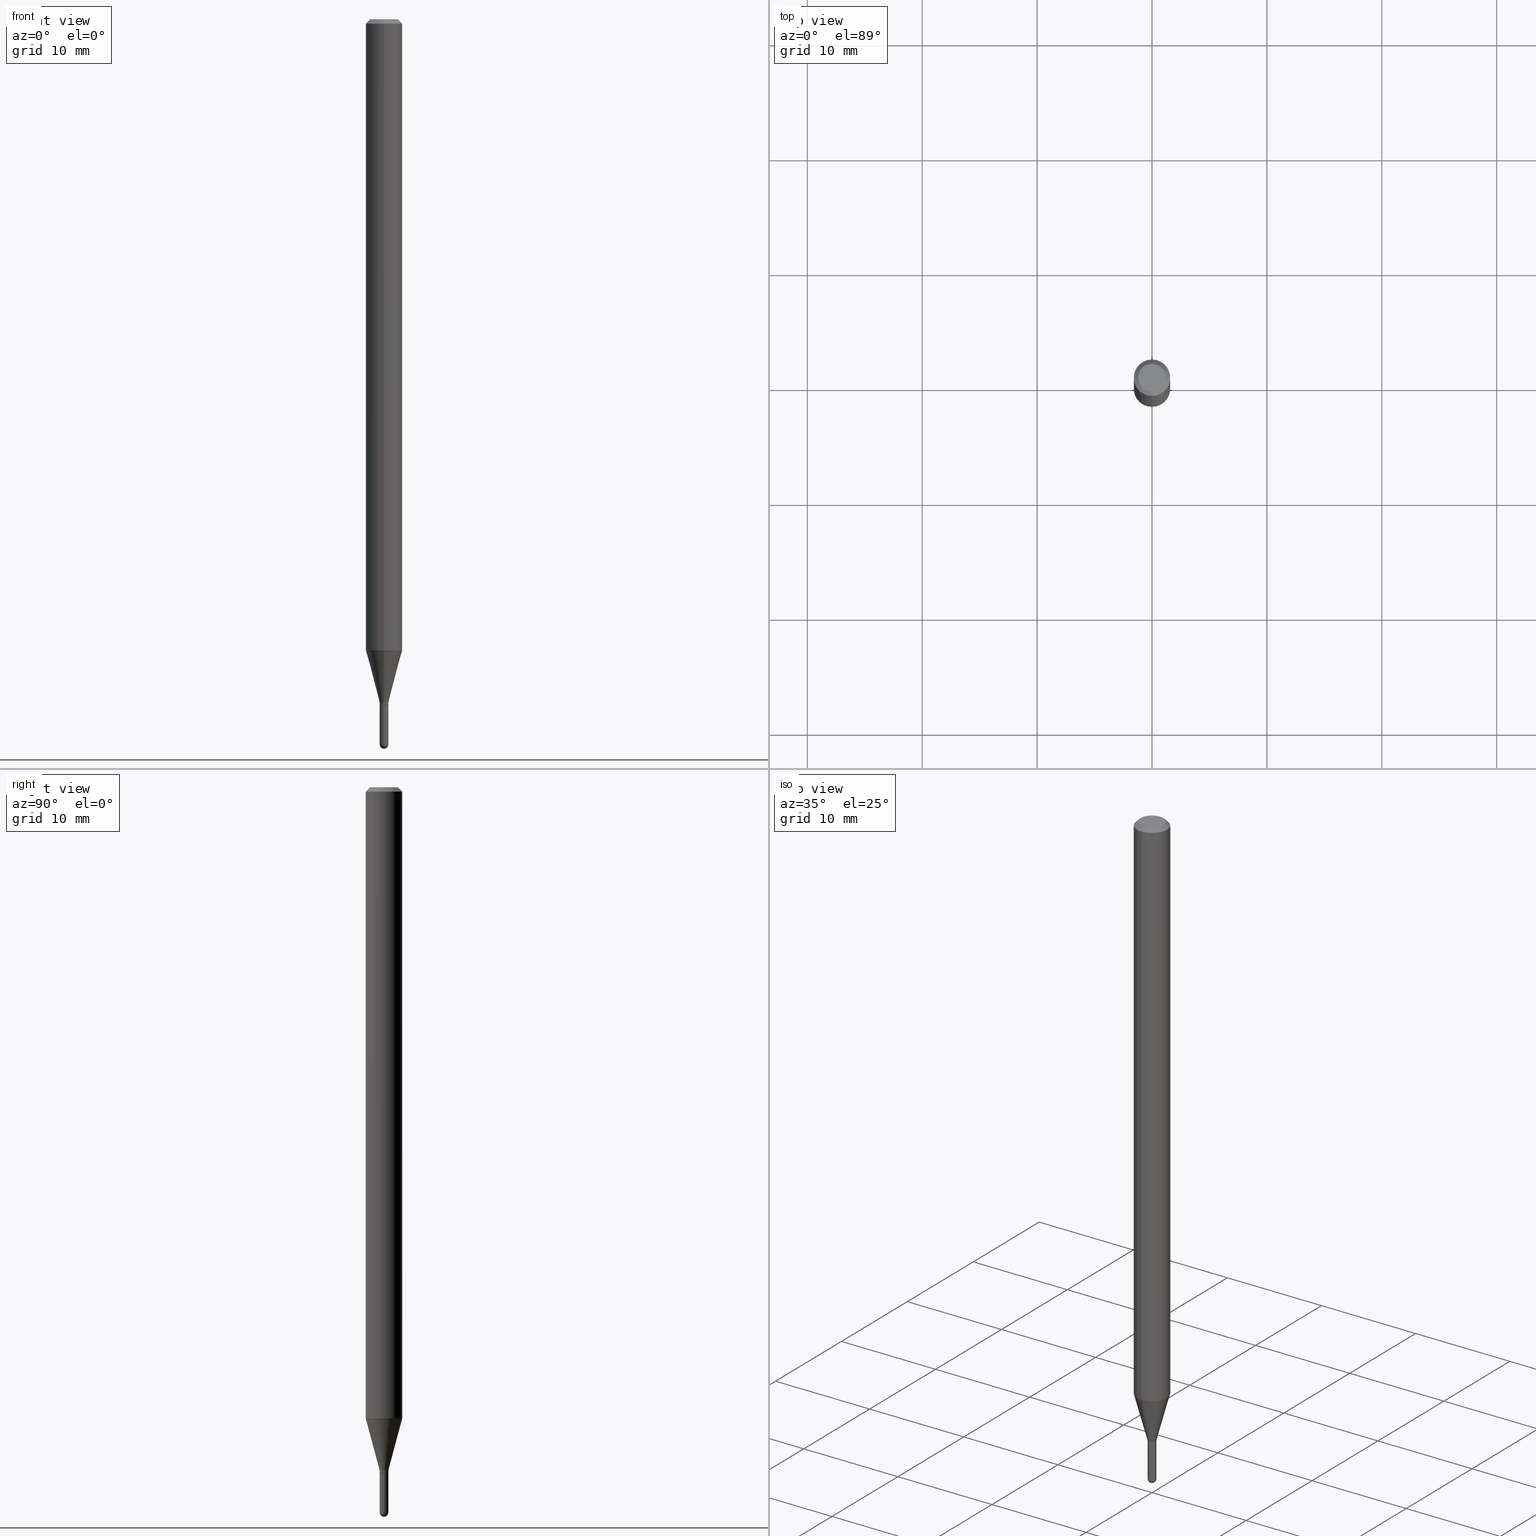
[diagram: canonical four-view strip — front | top / right | iso, engineering-drawing reading convention]
A machine part, canonical four-view strip (front | top / right | iso — engineering-drawing reading convention). The complete STEP part file that produces these views, byte-faithful:
ISO-10303-21;
HEADER;
FILE_DESCRIPTION (( 'STEP AP203' ),
    '1' );
FILE_NAME ('02724.STEP',
    '2024-03-07T21:00:24',
    ( '' ),
    ( '' ),
    'SwSTEP 2.0',
    'SolidWorks 2023',
    '' );
FILE_SCHEMA (( 'CONFIG_CONTROL_DESIGN' ));
ENDSEC;

DATA;
#1 = FACE_OUTER_BOUND ( 'NONE', #77, .T. ) ;
#2 = ORIENTED_EDGE ( 'NONE', *, *, #396, .F. ) ;
#3 = LINE ( 'NONE', #163, #122 ) ;
#4 = DIRECTION ( 'NONE',  ( -1.000000000000000000, 6.982962677686265922E-15, -4.876176775795935793E-29 ) ) ;
#5 = AXIS2_PLACEMENT_3D ( 'NONE', #437, #438, #4 ) ;
#6 = FACE_OUTER_BOUND ( 'NONE', #450, .T. ) ;
#7 = MANIFOLD_SOLID_BREP ( 'Body-Move/Copy2[1]', #432 ) ;
#8 = PRODUCT ( '02724', '02724', '', ( #373 ) ) ;
#9 = DIRECTION ( 'NONE',  ( 1.000000000000000000, -6.982962677686204391E-15, 0.000000000000000000 ) ) ;
#10 = VERTEX_POINT ( 'NONE', #133 ) ;
#11 = DIRECTION ( 'NONE',  ( -6.982962677686265922E-15, -1.000000000000000000, 0.000000000000000000 ) ) ;
#12 = ORIENTED_EDGE ( 'NONE', *, *, #372, .F. ) ;
#13 = AXIS2_PLACEMENT_3D ( 'NONE', #109, #154, #145 ) ;
#14 = EDGE_CURVE ( 'NONE', #471, #72, #281, .T. ) ;
#15 = DIRECTION ( 'NONE',  ( -2.445393450716331535E-29, 3.491589252163441310E-15, 1.000000000000000000 ) ) ;
#16 = ORIENTED_EDGE ( 'NONE', *, *, #489, .F. ) ;
#17 = PERSON_AND_ORGANIZATION ( #185, #346 ) ;
#18 = FACE_OUTER_BOUND ( 'NONE', #279, .T. ) ;
#19 = APPLICATION_CONTEXT ( 'configuration controlled 3d designs of mechanical parts and assemblies' ) ;
#20 =( NAMED_UNIT ( * ) SI_UNIT ( $, .STERADIAN. ) SOLID_ANGLE_UNIT ( ) );
#21 = VERTEX_POINT ( 'NONE', #25 ) ;
#22 = AXIS2_PLACEMENT_3D ( 'NONE', #490, #93, #172 ) ;
#23 = VECTOR ( 'NONE', #383, 39.37007874015748143 ) ;
#24 =( CONVERSION_BASED_UNIT ( 'INCH', #26 ) LENGTH_UNIT ( ) NAMED_UNIT ( #400 ) );
#25 = CARTESIAN_POINT ( 'NONE',  ( 0.01499999999999999771, -8.545400576818596813E-15, -2.484999999999999432 ) ) ;
#26 = LENGTH_MEASURE_WITH_UNIT ( LENGTH_MEASURE( 0.02539999999999999897 ), #169 );
#27 = DIRECTION ( 'NONE',  ( -2.445393450716331535E-29, 3.491589252163441310E-15, 1.000000000000000000 ) ) ;
#28 = CALENDAR_DATE ( 2024, 7, 3 ) ;
#29 = CARTESIAN_POINT ( 'NONE',  ( 4.364351673553919652E-16, 0.06249999999999995143, -0.01500000000000054588 ) ) ;
#30 = AXIS2_PLACEMENT_3D ( 'NONE', #125, #287, #50 ) ;
#31 = APPROVAL_PERSON_ORGANIZATION ( #299, #457, #406 ) ;
#32 = PERSON_AND_ORGANIZATION ( #185, #346 ) ;
#33 = CARTESIAN_POINT ( 'NONE',  ( 6.075707233936295932E-29, -8.678168097223937644E-15, -2.484999999999999876 ) ) ;
#34 = EDGE_LOOP ( 'NONE', ( #155, #195, #474, #233 ) ) ;
#35 = COORDINATED_UNIVERSAL_TIME_OFFSET ( 5, 0, .BEHIND. ) ;
#36 = FACE_OUTER_BOUND ( 'NONE', #313, .T. ) ;
#37 = ORIENTED_EDGE ( 'NONE', *, *, #107, .T. ) ;
#38 = CARTESIAN_POINT ( 'NONE',  ( -1.012529588263933919E-16, -0.01450000000000820771, -2.350000000000000533 ) ) ;
#39 = ADVANCED_FACE ( 'NONE', ( #18 ), #410, .T. ) ;
#40 = EDGE_LOOP ( 'NONE', ( #12, #254, #426, #348, #246 ) ) ;
#41 = COORDINATED_UNIVERSAL_TIME_OFFSET ( 5, 0, .BEHIND. ) ;
#42 = AXIS2_PLACEMENT_3D ( 'NONE', #427, #357, #390 ) ;
#43 = CARTESIAN_POINT ( 'NONE',  ( 6.075707233936295932E-29, -8.678168097223937644E-15, -2.484999999999999876 ) ) ;
#44 = VERTEX_POINT ( 'NONE', #455 ) ;
#45 = CARTESIAN_POINT ( 'NONE',  ( 3.668090176074577860E-31, -5.237383878245276399E-17, -0.01500000000000032904 ) ) ;
#46 = ORIENTED_EDGE ( 'NONE', *, *, #127, .T. ) ;
#47 = ADVANCED_FACE ( 'NONE', ( #103 ), #179, .T. ) ;
#48 = DIRECTION ( 'NONE',  ( -1.807323732225331717E-15, -0.2588190451025184080, 0.9659258262890689783 ) ) ;
#49 = EDGE_CURVE ( 'NONE', #380, #367, #262, .T. ) ;
#50 = DIRECTION ( 'NONE',  ( -6.982962677686265922E-15, -1.000000000000000000, 3.491589252163441310E-15 ) ) ;
#51 = VECTOR ( 'NONE', #48, 39.37007874015748854 ) ;
#52 = CC_DESIGN_DATE_AND_TIME_ASSIGNMENT ( #302, #274, ( #480 ) ) ;
#53 = DIRECTION ( 'NONE',  ( -2.445468806185136877E-29, 3.491481338843145188E-15, 1.000000000000000000 ) ) ;
#54 = DIRECTION ( 'NONE',  ( -6.982962677686265922E-15, -1.000000000000000000, 3.483106191921935554E-15 ) ) ;
#55 = ORIENTED_EDGE ( 'NONE', *, *, #384, .T. ) ;
#56 = COORDINATED_UNIVERSAL_TIME_OFFSET ( 5, 0, .BEHIND. ) ;
#57 = CARTESIAN_POINT ( 'NONE',  ( 0.000000000000000000, 0.000000000000000000, 0.000000000000000000 ) ) ;
#58 = VECTOR ( 'NONE', #444, 39.37007874015748143 ) ;
#59 = DIRECTION ( 'NONE',  ( -6.982962677686265922E-15, -1.000000000000000000, 4.370956789862821150E-15 ) ) ;
#60 = DIRECTION ( 'NONE',  ( -6.982962677686265133E-15, -1.000000000000000000, 3.491589252163441310E-15 ) ) ;
#61 = ADVANCED_FACE ( 'NONE', ( #332 ), #374, .T. ) ;
#62 = DIRECTION ( 'NONE',  ( 2.445393450716331535E-29, -3.491589252163441310E-15, -1.000000000000000000 ) ) ;
#63 = DIRECTION ( 'NONE',  ( -2.445468806185136597E-29, 3.491481338843145583E-15, 1.000000000000000000 ) ) ;
#64 = CARTESIAN_POINT ( 'NONE',  ( 6.113030640745956810E-29, -8.729621832207224636E-15, -2.499999999999999556 ) ) ;
#65 = VECTOR ( 'NONE', #506, 39.37007874015748143 ) ;
#66 = DIRECTION ( 'NONE',  ( -2.445393450716331535E-29, 3.491589252163441310E-15, 1.000000000000000000 ) ) ;
#67 = DIRECTION ( 'NONE',  ( -6.982962677686265922E-15, -1.000000000000000000, 3.483106191921935554E-15 ) ) ;
#68 = DIRECTION ( 'NONE',  ( -2.445393450716331535E-29, 3.491589252163441310E-15, 1.000000000000000000 ) ) ;
#69 = LINE ( 'NONE', #430, #65 ) ;
#70 = AXIS2_PLACEMENT_3D ( 'NONE', #238, #395, #323 ) ;
#71 = FACE_OUTER_BOUND ( 'NONE', #447, .T. ) ;
#72 = VERTEX_POINT ( 'NONE', #175 ) ;
#73 = PLANE ( 'NONE',  #362 ) ;
#74 = VERTEX_POINT ( 'NONE', #493 ) ;
#75 = PERSON_AND_ORGANIZATION ( #185, #346 ) ;
#76 = CARTESIAN_POINT ( 'NONE',  ( 5.746674609183379696E-29, -8.205234742584089169E-15, -2.350000000000000533 ) ) ;
#77 = EDGE_LOOP ( 'NONE', ( #223, #37, #139, #273 ) ) ;
#78 = AXIS2_PLACEMENT_3D ( 'NONE', #196, #319, #86 ) ;
#79 = VECTOR ( 'NONE', #475, 39.37007874015748143 ) ;
#80 = DIRECTION ( 'NONE',  ( -2.445393450716331535E-29, 3.491589252163441310E-15, 1.000000000000000000 ) ) ;
#81 = VERTEX_POINT ( 'NONE', #341 ) ;
#82 = CARTESIAN_POINT ( 'NONE',  ( 6.076989983370063053E-29, -8.676331127025215102E-15, -2.484999999999999432 ) ) ;
#83 = CARTESIAN_POINT ( 'NONE',  ( 6.075707233936295932E-29, -8.678168097223937644E-15, -2.484999999999999876 ) ) ;
#84 = EDGE_CURVE ( 'NONE', #21, #356, #241, .T. ) ;
#85 = AXIS2_PLACEMENT_3D ( 'NONE', #411, #63, #497 ) ;
#86 = DIRECTION ( 'NONE',  ( -6.982962677686265133E-15, -1.000000000000000000, 0.000000000000000000 ) ) ;
#87 = CIRCLE ( 'NONE', #167, 0.01450000000000000074 ) ;
#88 = CIRCLE ( 'NONE', #502, 0.01500000000000019894 ) ;
#89 = CARTESIAN_POINT ( 'NONE',  ( 0.000000000000000000, 0.000000000000000000, 0.000000000000000000 ) ) ;
#90 = VERTEX_POINT ( 'NONE', #64 ) ;
#91 = ORIENTED_EDGE ( 'NONE', *, *, #434, .F. ) ;
#92 = DIRECTION ( 'NONE',  ( -6.982962677686265922E-15, -1.000000000000000000, 0.000000000000000000 ) ) ;
#93 = DIRECTION ( 'NONE',  ( -2.445468806185136597E-29, 3.491481338843145583E-15, 1.000000000000000000 ) ) ;
#94 = AXIS2_PLACEMENT_3D ( 'NONE', #82, #440, #9 ) ;
#95 = CC_DESIGN_APPROVAL ( #457, ( #492 ) ) ;
#96 = CARTESIAN_POINT ( 'NONE',  ( -3.773273898774340269E-16, -0.04749999999999999362, -1.622913323516821957E-16 ) ) ;
#97 = ORIENTED_EDGE ( 'NONE', *, *, #194, .F. ) ;
#98 = CC_DESIGN_PERSON_AND_ORGANIZATION_ASSIGNMENT ( #277, #472, ( #492 ) ) ;
#99 = DIRECTION ( 'NONE',  ( -6.982962677686265133E-15, -1.000000000000000000, 0.000000000000000000 ) ) ;
#100 = LINE ( 'NONE', #260, #104 ) ;
#101 = EDGE_CURVE ( 'NONE', #10, #21, #377, .T. ) ;
#102 = LINE ( 'NONE', #252, #435 ) ;
#103 = FACE_OUTER_BOUND ( 'NONE', #488, .T. ) ;
#104 = VECTOR ( 'NONE', #263, 39.37007874015748143 ) ;
#105 = AXIS2_PLACEMENT_3D ( 'NONE', #173, #487, #171 ) ;
#106 = SHAPE_DEFINITION_REPRESENTATION ( #247, #368 ) ;
#107 = EDGE_CURVE ( 'NONE', #339, #74, #100, .T. ) ;
#108 = ORIENTED_EDGE ( 'NONE', *, *, #462, .F. ) ;
#109 = CARTESIAN_POINT ( 'NONE',  ( 3.316907271900976096E-16, 0.04749999999999999362, -3.299214003924862941E-16 ) ) ;
#110 = PERSON_AND_ORGANIZATION ( #185, #346 ) ;
#111 = EDGE_CURVE ( 'NONE', #74, #81, #441, .T. ) ;
#112 = ORIENTED_EDGE ( 'NONE', *, *, #156, .T. ) ;
#113 = CIRCLE ( 'NONE', #94, 0.01499999999999999771 ) ;
#114 = DIRECTION ( 'NONE',  ( -4.851104656540964275E-15, -0.7071067811865500152, -0.7071067811865450192 ) ) ;
#115 = VERTEX_POINT ( 'NONE', #220 ) ;
#116 = DATE_TIME_ROLE ( 'creation_date' ) ;
#117 = CARTESIAN_POINT ( 'NONE',  ( -1.012529588263933919E-16, -0.01450000000000820771, -2.350000000000000533 ) ) ;
#118 = ORIENTED_EDGE ( 'NONE', *, *, #381, .F. ) ;
#119 = ADVANCED_FACE ( 'NONE', ( #1 ), #473, .T. ) ;
#120 = CARTESIAN_POINT ( 'NONE',  ( 1.048050535246729257E-16, 0.01449999999999179376, -2.350000000000000533 ) ) ;
#121 = VERTEX_POINT ( 'NONE', #38 ) ;
#122 = VECTOR ( 'NONE', #398, 39.37007874015748143 ) ;
#123 = LOCAL_TIME ( 16, 0, 24.00000000000000000, #308 ) ;
#124 = DIRECTION ( 'NONE',  ( -6.982962677686266711E-15, -1.000000000000000000, 3.491589252163441704E-15 ) ) ;
#125 = CARTESIAN_POINT ( 'NONE',  ( 0.000000000000000000, 0.000000000000000000, 0.000000000000000000 ) ) ;
#126 = DIRECTION ( 'NONE',  ( 1.000000000000000000, -6.982962677686204391E-15, 0.000000000000000000 ) ) ;
#127 = EDGE_CURVE ( 'NONE', #115, #407, #165, .T. ) ;
#128 = CARTESIAN_POINT ( 'NONE',  ( 4.440892098501152726E-16, 0.06249999999999242967, -2.162727586640479593 ) ) ;
#129 = CIRCLE ( 'NONE', #415, 0.06250000000000000000 ) ;
#130 = ORIENTED_EDGE ( 'NONE', *, *, #127, .F. ) ;
#131 = EDGE_LOOP ( 'NONE', ( #177, #146, #91, #445 ) ) ;
#132 = LINE ( 'NONE', #446, #58 ) ;
#133 = CARTESIAN_POINT ( 'NONE',  ( -1.065814103639537147E-16, -0.01500000000000860367, -2.484999999999999432 ) ) ;
#134 = DIRECTION ( 'NONE',  ( -2.445393450716331535E-29, 3.491589252163441310E-15, 1.000000000000000000 ) ) ;
#135 = ORIENTED_EDGE ( 'NONE', *, *, #503, .F. ) ;
#136 = AXIS2_PLACEMENT_3D ( 'NONE', #338, #62, #452 ) ;
#137 = DATE_AND_TIME ( #449, #209 ) ;
#138 = DIRECTION ( 'NONE',  ( 1.000000000000000000, -6.982962677686204391E-15, 0.000000000000000000 ) ) ;
#139 = ORIENTED_EDGE ( 'NONE', *, *, #258, .F. ) ;
#140 = CALENDAR_DATE ( 2024, 7, 3 ) ;
#141 = VERTEX_POINT ( 'NONE', #464 ) ;
#142 = AXIS2_PLACEMENT_3D ( 'NONE', #331, #134, #208 ) ;
#143 = CC_DESIGN_SECURITY_CLASSIFICATION ( #480, ( #265 ) ) ;
#144 = LINE ( 'NONE', #269, #486 ) ;
#145 = DIRECTION ( 'NONE',  ( 6.982962677686265922E-15, 1.000000000000000000, -3.491589252163441310E-15 ) ) ;
#146 = ORIENTED_EDGE ( 'NONE', *, *, #222, .T. ) ;
#147 = CARTESIAN_POINT ( 'NONE',  ( 0.000000000000000000, 0.000000000000000000, 0.000000000000000000 ) ) ;
#148 = ORIENTED_EDGE ( 'NONE', *, *, #483, .T. ) ;
#149 = VECTOR ( 'NONE', #53, 39.37007874015748143 ) ;
#150 = APPROVAL_PERSON_ORGANIZATION ( #32, #239, #459 ) ;
#151 = DIRECTION ( 'NONE',  ( -6.982962677686265133E-15, -1.000000000000000000, 0.000000000000000000 ) ) ;
#152 = ORIENTED_EDGE ( 'NONE', *, *, #84, .T. ) ;
#153 = EDGE_CURVE ( 'NONE', #405, #81, #144, .T. ) ;
#154 = DIRECTION ( 'NONE',  ( 2.445393450716331255E-29, -3.491589252163441310E-15, -1.000000000000000000 ) ) ;
#155 = ORIENTED_EDGE ( 'NONE', *, *, #200, .F. ) ;
#156 = EDGE_CURVE ( 'NONE', #339, #405, #199, .T. ) ;
#157 = DIRECTION ( 'NONE',  ( -2.445393450716331535E-29, 3.491589252163441310E-15, 1.000000000000000000 ) ) ;
#158 = CC_DESIGN_PERSON_AND_ORGANIZATION_ASSIGNMENT ( #17, #248, ( #8 ) ) ;
#159 =( GEOMETRIC_REPRESENTATION_CONTEXT ( 3 ) GLOBAL_UNCERTAINTY_ASSIGNED_CONTEXT ( ( #412 ) ) GLOBAL_UNIT_ASSIGNED_CONTEXT ( ( #24, #219, #20 ) ) REPRESENTATION_CONTEXT ( 'NONE', 'WORKASPACE' ) );
#160 = FACE_OUTER_BOUND ( 'NONE', #394, .T. ) ;
#161 = CARTESIAN_POINT ( 'NONE',  ( 8.024358620078516947E-45, -1.145736458285023470E-30, -3.281418218294456599E-16 ) ) ;
#162 = ADVANCED_FACE ( 'NONE', ( #224 ), #275, .T. ) ;
#163 = CARTESIAN_POINT ( 'NONE',  ( 0.01499999999999999771, -1.047444401652939859E-16, 7.314265163693902638E-31 ) ) ;
#164 = VERTEX_POINT ( 'NONE', #461 ) ;
#165 = CIRCLE ( 'NONE', #232, 0.01500000000000019894 ) ;
#166 = CARTESIAN_POINT ( 'NONE',  ( 5.746674609183379696E-29, -8.205234742584089169E-15, -2.350000000000000533 ) ) ;
#167 = AXIS2_PLACEMENT_3D ( 'NONE', #214, #66, #92 ) ;
#168 = ORIENTED_EDGE ( 'NONE', *, *, #326, .T. ) ;
#169 =( LENGTH_UNIT ( ) NAMED_UNIT ( * ) SI_UNIT ( $, .METRE. ) );
#170 = DIRECTION ( 'NONE',  ( 1.000000000000000000, -6.982962677686268288E-15, 0.000000000000000000 ) ) ;
#171 = DIRECTION ( 'NONE',  ( 6.982962677686265922E-15, 1.000000000000000000, -3.483106191921935554E-15 ) ) ;
#172 = DIRECTION ( 'NONE',  ( 1.000000000000000000, -6.982962677686266711E-15, 4.876176775795935793E-29 ) ) ;
#173 = CARTESIAN_POINT ( 'NONE',  ( 3.668090176074577860E-31, -5.237383878245276399E-17, -0.01500000000000032904 ) ) ;
#174 = AXIS2_PLACEMENT_3D ( 'NONE', #334, #371, #298 ) ;
#175 = CARTESIAN_POINT ( 'NONE',  ( 3.840629472727447874E-16, 0.04749999999999999362, -4.939923113072091241E-16 ) ) ;
#176 = ADVANCED_FACE ( 'NONE', ( #36 ), #73, .F. ) ;
#177 = ORIENTED_EDGE ( 'NONE', *, *, #417, .F. ) ;
#178 = ADVANCED_FACE ( 'NONE', ( #228 ), #207, .T. ) ;
#179 = CYLINDRICAL_SURFACE ( 'NONE', #174, 0.01499999999999999771 ) ;
#180 = COORDINATED_UNIVERSAL_TIME_OFFSET ( 5, 0, .BEHIND. ) ;
#181 = DIRECTION ( 'NONE',  ( -2.445393450716331535E-29, 3.491589252163441310E-15, 1.000000000000000000 ) ) ;
#182 = AXIS2_PLACEMENT_3D ( 'NONE', #189, #181, #305 ) ;
#183 = AXIS2_PLACEMENT_3D ( 'NONE', #375, #336, #333 ) ;
#184 = DIRECTION ( 'NONE',  ( -1.000000000000000000, 7.105427357601001070E-15, -4.926315508542082329E-29 ) ) ;
#185 = PERSON ( 'UNSPECIFIED', 'UNSPECIFIED', 'UNSPECIFIED', ('UNSPECIFIED'), ('UNSPECIFIED'), ('UNSPECIFIED') ) ;
#186 = DIRECTION ( 'NONE',  ( 6.982962677686265922E-15, 1.000000000000000000, 0.000000000000000000 ) ) ;
#187 = ORIENTED_EDGE ( 'NONE', *, *, #255, .T. ) ;
#188 = DATE_AND_TIME ( #28, #123 ) ;
#189 = CARTESIAN_POINT ( 'NONE',  ( 5.288719876054166459E-29, -7.551356396871277029E-15, -2.162727586640479593 ) ) ;
#190 = CC_DESIGN_PERSON_AND_ORGANIZATION_ASSIGNMENT ( #340, #499, ( #265 ) ) ;
#191 = ORIENTED_EDGE ( 'NONE', *, *, #381, .T. ) ;
#192 = CONICAL_SURFACE ( 'NONE', #78, 0.01500000000000019894, 0.2617993877991505181 ) ;
#193 = DIRECTION ( 'NONE',  ( -2.445393450716331535E-29, 3.491589252163441310E-15, 1.000000000000000000 ) ) ;
#194 = EDGE_CURVE ( 'NONE', #121, #164, #388, .T. ) ;
#195 = ORIENTED_EDGE ( 'NONE', *, *, #250, .T. ) ;
#196 = CARTESIAN_POINT ( 'NONE',  ( 5.722220674676214346E-29, -8.170318850062451766E-15, -2.339999999999999414 ) ) ;
#197 = EDGE_CURVE ( 'NONE', #164, #115, #309, .T. ) ;
#198 = CYLINDRICAL_SURFACE ( 'NONE', #30, 0.06250000000000000000 ) ;
#199 = CIRCLE ( 'NONE', #182, 0.06250000000000000000 ) ;
#200 = EDGE_CURVE ( 'NONE', #330, #141, #69, .T. ) ;
#201 = LINE ( 'NONE', #366, #149 ) ;
#202 = FACE_OUTER_BOUND ( 'NONE', #512, .T. ) ;
#203 = ORIENTED_EDGE ( 'NONE', *, *, #49, .F. ) ;
#204 = LINE ( 'NONE', #364, #51 ) ;
#205 = ORIENTED_EDGE ( 'NONE', *, *, #255, .F. ) ;
#206 = ADVANCED_FACE ( 'NONE', ( #71 ), #345, .F. ) ;
#207 = CONICAL_SURFACE ( 'NONE', #42, 0.01500000000000019894, 0.2617993877991505181 ) ;
#208 = DIRECTION ( 'NONE',  ( -6.982962677686265133E-15, -1.000000000000000000, 0.000000000000000000 ) ) ;
#209 = LOCAL_TIME ( 16, 0, 24.00000000000000000, #56 ) ;
#210 = DIRECTION ( 'NONE',  ( -2.445393450716331535E-29, 3.491589252163441310E-15, 1.000000000000000000 ) ) ;
#211 = ORIENTED_EDGE ( 'NONE', *, *, #322, .T. ) ;
#212 = CARTESIAN_POINT ( 'NONE',  ( 6.076989983370063053E-29, -8.676331127025215102E-15, -2.484999999999999432 ) ) ;
#213 = DESIGN_CONTEXT ( 'detailed design', #19, 'design' ) ;
#214 = CARTESIAN_POINT ( 'NONE',  ( 5.746674609183379696E-29, -8.205234742584089169E-15, -2.350000000000000533 ) ) ;
#215 = EDGE_CURVE ( 'NONE', #72, #74, #227, .T. ) ;
#216 = AXIS2_PLACEMENT_3D ( 'NONE', #500, #418, #67 ) ;
#217 = ORIENTED_EDGE ( 'NONE', *, *, #197, .F. ) ;
#218 = AXIS2_PLACEMENT_3D ( 'NONE', #33, #184, #267 ) ;
#219 =( NAMED_UNIT ( * ) PLANE_ANGLE_UNIT ( ) SI_UNIT ( $, .RADIAN. ) );
#220 = CARTESIAN_POINT ( 'NONE',  ( -1.047444401652381493E-16, -0.01500000000000836775, -2.339999999999999414 ) ) ;
#221 = CARTESIAN_POINT ( 'NONE',  ( -1.047444401652953664E-16, -0.01500000000000019894, 5.237383878245231409E-17 ) ) ;
#222 = EDGE_CURVE ( 'NONE', #90, #10, #289, .T. ) ;
#223 = ORIENTED_EDGE ( 'NONE', *, *, #462, .T. ) ;
#224 = FACE_OUTER_BOUND ( 'NONE', #414, .T. ) ;
#225 = AXIS2_PLACEMENT_3D ( 'NONE', #89, #244, #404 ) ;
#226 = DATE_AND_TIME ( #429, #284 ) ;
#227 = LINE ( 'NONE', #29, #79 ) ;
#228 = FACE_OUTER_BOUND ( 'NONE', #508, .T. ) ;
#229 = ORIENTED_EDGE ( 'NONE', *, *, #111, .T. ) ;
#230 = APPROVAL_DATE_TIME ( #188, #286 ) ;
#231 = CARTESIAN_POINT ( 'NONE',  ( 5.722220674676214346E-29, -8.170318850062451766E-15, -2.339999999999999414 ) ) ;
#232 = AXIS2_PLACEMENT_3D ( 'NONE', #231, #193, #151 ) ;
#233 = ORIENTED_EDGE ( 'NONE', *, *, #483, .F. ) ;
#234 = AXIS2_PLACEMENT_3D ( 'NONE', #161, #403, #124 ) ;
#235 = APPROVAL_PERSON_ORGANIZATION ( #392, #286, #382 ) ;
#236 = DIRECTION ( 'NONE',  ( -6.982962677686265133E-15, -1.000000000000000000, 0.000000000000000000 ) ) ;
#237 = ORIENTED_EDGE ( 'NONE', *, *, #511, .F. ) ;
#238 = CARTESIAN_POINT ( 'NONE',  ( 5.746851694535070554E-29, -8.204981146281391784E-15, -2.350000000000000089 ) ) ;
#239 = APPROVAL ( #343, 'UNSPECIFIED' ) ;
#240 = CARTESIAN_POINT ( 'NONE',  ( 5.745451912458022214E-29, -8.203488947958005642E-15, -2.349500000000000366 ) ) ;
#241 = CIRCLE ( 'NONE', #85, 0.01499999999999999771 ) ;
#242 = CARTESIAN_POINT ( 'NONE',  ( 5.746674609183379696E-29, -8.205234742584089169E-15, -2.350000000000000533 ) ) ;
#243 = APPLICATION_CONTEXT ( 'configuration controlled 3d designs of mechanical parts and assemblies' ) ;
#244 = DIRECTION ( 'NONE',  ( -2.445393450716331535E-29, 3.491589252163441310E-15, 1.000000000000000000 ) ) ;
#245 = ADVANCED_FACE ( 'NONE', ( #270 ), #347, .T. ) ;
#246 = ORIENTED_EDGE ( 'NONE', *, *, #384, .F. ) ;
#247 = PRODUCT_DEFINITION_SHAPE ( 'NONE', 'NONE',  #492 ) ;
#248 = PERSON_AND_ORGANIZATION_ROLE ( 'design_owner' ) ;
#249 = ORIENTED_EDGE ( 'NONE', *, *, #156, .F. ) ;
#250 = EDGE_CURVE ( 'NONE', #330, #121, #304, .T. ) ;
#251 = VECTOR ( 'NONE', #278, 39.37007874015748143 ) ;
#252 = CARTESIAN_POINT ( 'NONE',  ( 1.065814103640736462E-16, 0.01499999999999202839, -2.339999999999999414 ) ) ;
#253 = LOCAL_TIME ( 16, 0, 24.00000000000000000, #35 ) ;
#254 = ORIENTED_EDGE ( 'NONE', *, *, #434, .T. ) ;
#255 = EDGE_CURVE ( 'NONE', #471, #81, #507, .T. ) ;
#256 = ORIENTED_EDGE ( 'NONE', *, *, #477, .F. ) ;
#257 = PRODUCT_RELATED_PRODUCT_CATEGORY ( 'detail', '', ( #8 ) ) ;
#258 = EDGE_CURVE ( 'NONE', #81, #74, #129, .T. ) ;
#259 = APPROVAL_DATE_TIME ( #137, #457 ) ;
#260 = CARTESIAN_POINT ( 'NONE',  ( 4.440892098500625669E-16, 0.06250000000000000000, -2.182243282602150819E-16 ) ) ;
#261 = CARTESIAN_POINT ( 'NONE',  ( 5.722220674676214346E-29, -8.170318850062451766E-15, -2.339999999999999414 ) ) ;
#262 = CIRCLE ( 'NONE', #467, 0.01499999999999999944 ) ;
#263 = DIRECTION ( 'NONE',  ( -2.445393450716331535E-29, 3.491589252163441310E-15, 1.000000000000000000 ) ) ;
#264 = CIRCLE ( 'NONE', #328, 0.01500000000000019894 ) ;
#265 = PRODUCT_DEFINITION_FORMATION_WITH_SPECIFIED_SOURCE ( 'ANY', '', #8, .NOT_KNOWN. ) ;
#266 = APPROVAL_STATUS ( 'not_yet_approved' ) ;
#267 = DIRECTION ( 'NONE',  ( -7.105427357601001070E-15, -1.000000000000000000, 0.000000000000000000 ) ) ;
#268 = ORIENTED_EDGE ( 'NONE', *, *, #372, .T. ) ;
#269 = CARTESIAN_POINT ( 'NONE',  ( -4.364351673553916201E-16, -0.06250000000000000000, 2.182243282602150819E-16 ) ) ;
#270 = FACE_OUTER_BOUND ( 'NONE', #131, .T. ) ;
#271 = AXIS2_PLACEMENT_3D ( 'NONE', #460, #210, #303 ) ;
#272 = AXIS2_PLACEMENT_3D ( 'NONE', #291, #482, #126 ) ;
#273 = ORIENTED_EDGE ( 'NONE', *, *, #153, .F. ) ;
#274 = DATE_TIME_ROLE ( 'classification_date' ) ;
#275 = SPHERICAL_SURFACE ( 'NONE', #479, 0.01499999999999985199 ) ;
#276 = ORIENTED_EDGE ( 'NONE', *, *, #477, .T. ) ;
#277 = PERSON_AND_ORGANIZATION ( #185, #346 ) ;
#278 = DIRECTION ( 'NONE',  ( -4.937700262164674260E-15, -0.7071067811865632269, 0.7071067811865319186 ) ) ;
#279 = EDGE_LOOP ( 'NONE', ( #135, #148, #428, #237 ) ) ;
#280 = CARTESIAN_POINT ( 'NONE',  ( 1.047444401653542228E-16, 0.01499999999999124776, -2.484999999999999432 ) ) ;
#281 = CIRCLE ( 'NONE', #271, 0.04749999999999999362 ) ;
#282 = AXIS2_PLACEMENT_3D ( 'NONE', #83, #484, #363 ) ;
#283 = ORIENTED_EDGE ( 'NONE', *, *, #153, .T. ) ;
#284 = LOCAL_TIME ( 16, 0, 24.00000000000000000, #41 ) ;
#285 = DIRECTION ( 'NONE',  ( -6.982962677686265922E-15, -1.000000000000000000, 0.000000000000000000 ) ) ;
#286 = APPROVAL ( #266, 'UNSPECIFIED' ) ;
#287 = DIRECTION ( 'NONE',  ( -2.445393450716331535E-29, 3.491589252163441310E-15, 1.000000000000000000 ) ) ;
#288 = FACE_OUTER_BOUND ( 'NONE', #316, .T. ) ;
#289 = CIRCLE ( 'NONE', #218, 0.01499999999999985199 ) ;
#290 = ADVANCED_FACE ( 'NONE', ( #399 ), #192, .T. ) ;
#291 = CARTESIAN_POINT ( 'NONE',  ( 6.076989983370063053E-29, -8.676331127025215102E-15, -2.484999999999999432 ) ) ;
#292 = ORIENTED_EDGE ( 'NONE', *, *, #14, .T. ) ;
#293 = ORIENTED_EDGE ( 'NONE', *, *, #215, .F. ) ;
#294 = APPLICATION_PROTOCOL_DEFINITION ( 'international standard', 'config_control_design', 1994, #243 ) ;
#295 = DIRECTION ( 'NONE',  ( -2.445468806185136597E-29, 3.491481338843145583E-15, 1.000000000000000000 ) ) ;
#296 = CIRCLE ( 'NONE', #272, 0.01499999999999999771 ) ;
#297 = CC_DESIGN_PERSON_AND_ORGANIZATION_ASSIGNMENT ( #75, #463, ( #265 ) ) ;
#298 = DIRECTION ( 'NONE',  ( 1.000000000000000000, -6.982962677686266711E-15, 4.876176775795935793E-29 ) ) ;
#299 = PERSON_AND_ORGANIZATION ( #185, #346 ) ;
#300 = CARTESIAN_POINT ( 'NONE',  ( 5.746851694535070554E-29, -8.204981146281391784E-15, -2.350000000000000089 ) ) ;
#301 = ORIENTED_EDGE ( 'NONE', *, *, #111, .F. ) ;
#302 = DATE_AND_TIME ( #140, #408 ) ;
#303 = DIRECTION ( 'NONE',  ( -6.982962677686266711E-15, -1.000000000000000000, 3.491589252163441704E-15 ) ) ;
#304 = CIRCLE ( 'NONE', #509, 0.01450000000000000074 ) ;
#305 = DIRECTION ( 'NONE',  ( -6.982962677686265922E-15, -1.000000000000000000, 4.370956789862821150E-15 ) ) ;
#306 = DIRECTION ( 'NONE',  ( -1.000000000000000000, 6.982962677686265922E-15, -4.883557194083112340E-29 ) ) ;
#307 = ORIENTED_EDGE ( 'NONE', *, *, #84, .F. ) ;
#308 = COORDINATED_UNIVERSAL_TIME_OFFSET ( 5, 0, .BEHIND. ) ;
#309 = LINE ( 'NONE', #221, #23 ) ;
#310 = AXIS2_PLACEMENT_3D ( 'NONE', #57, #27, #60 ) ;
#311 = CIRCLE ( 'NONE', #282, 0.01499999999999985199 ) ;
#312 = EDGE_CURVE ( 'NONE', #115, #405, #204, .T. ) ;
#313 = EDGE_LOOP ( 'NONE', ( #256, #385 ) ) ;
#314 = CALENDAR_DATE ( 2024, 7, 3 ) ;
#315 = DIRECTION ( 'NONE',  ( -6.982962677686265922E-15, -1.000000000000000000, 3.491589252163441310E-15 ) ) ;
#316 = EDGE_LOOP ( 'NONE', ( #191, #358, #130, #217 ) ) ;
#317 = DIRECTION ( 'NONE',  ( -6.982962677686265922E-15, -1.000000000000000000, 3.491589252163441310E-15 ) ) ;
#318 = ORIENTED_EDGE ( 'NONE', *, *, #222, .F. ) ;
#319 = DIRECTION ( 'NONE',  ( -2.445393450716331535E-29, 3.491589252163441310E-15, 1.000000000000000000 ) ) ;
#320 = CIRCLE ( 'NONE', #70, 0.01499999999999999944 ) ;
#321 = CARTESIAN_POINT ( 'NONE',  ( -4.364351673553388650E-16, -0.06250000000000757727, -2.162727586640479149 ) ) ;
#322 = EDGE_CURVE ( 'NONE', #72, #471, #401, .T. ) ;
#323 = DIRECTION ( 'NONE',  ( 1.000000000000000000, -6.982962677686268288E-15, 0.000000000000000000 ) ) ;
#324 = CARTESIAN_POINT ( 'NONE',  ( 0.01499999999999999944, -8.309725586446686731E-15, -2.350000000000000089 ) ) ;
#325 = ORIENTED_EDGE ( 'NONE', *, *, #322, .F. ) ;
#326 = EDGE_CURVE ( 'NONE', #356, #44, #113, .T. ) ;
#327 = AXIS2_PLACEMENT_3D ( 'NONE', #212, #376, #138 ) ;
#328 = AXIS2_PLACEMENT_3D ( 'NONE', #240, #80, #236 ) ;
#329 = DIRECTION ( 'NONE',  ( -2.445393450716331535E-29, 3.491589252163441310E-15, 1.000000000000000000 ) ) ;
#330 = VERTEX_POINT ( 'NONE', #120 ) ;
#331 = CARTESIAN_POINT ( 'NONE',  ( 5.745451912458022214E-29, -8.203488947958005642E-15, -2.349500000000000366 ) ) ;
#332 = FACE_OUTER_BOUND ( 'NONE', #40, .T. ) ;
#333 = DIRECTION ( 'NONE',  ( 1.000000000000000000, 0.000000000000000000, 0.000000000000000000 ) ) ;
#334 = CARTESIAN_POINT ( 'NONE',  ( 0.000000000000000000, 0.000000000000000000, 0.000000000000000000 ) ) ;
#335 = AXIS2_PLACEMENT_3D ( 'NONE', #242, #329, #285 ) ;
#336 = DIRECTION ( 'NONE',  ( 0.000000000000000000, 0.000000000000000000, 1.000000000000000000 ) ) ;
#337 = ORIENTED_EDGE ( 'NONE', *, *, #417, .T. ) ;
#338 = CARTESIAN_POINT ( 'NONE',  ( 3.668090176074577860E-31, -5.237383878245276399E-17, -0.01500000000000032904 ) ) ;
#339 = VERTEX_POINT ( 'NONE', #128 ) ;
#340 = PERSON_AND_ORGANIZATION ( #185, #346 ) ;
#341 = CARTESIAN_POINT ( 'NONE',  ( -4.364351673553912750E-16, -0.06250000000000005551, -0.01500000000000011047 ) ) ;
#342 = ADVANCED_FACE ( 'NONE', ( #202 ), #344, .T. ) ;
#343 = APPROVAL_STATUS ( 'not_yet_approved' ) ;
#344 = CONICAL_SURFACE ( 'NONE', #387, 0.01450000000000000074, 0.7853981633974739252 ) ;
#345 = PLANE ( 'NONE',  #13 ) ;
#346 = ORGANIZATION ( 'UNSPECIFIED', 'UNSPECIFIED', '' ) ;
#347 = SPHERICAL_SURFACE ( 'NONE', #355, 0.01499999999999985199 ) ;
#348 = ORIENTED_EDGE ( 'NONE', *, *, #396, .T. ) ;
#349 = MANIFOLD_SOLID_BREP ( 'Body-Move/Copy2[2]', #494 ) ;
#350 = PERSON_AND_ORGANIZATION_ROLE ( 'classification_officer' ) ;
#351 = DIRECTION ( 'NONE',  ( -6.982962677686265922E-15, -1.000000000000000000, 0.000000000000000000 ) ) ;
#352 = EDGE_LOOP ( 'NONE', ( #485, #187, #476, #293 ) ) ;
#353 = DIRECTION ( 'NONE',  ( -2.445393450716331255E-29, 3.491589252163441310E-15, 1.000000000000000000 ) ) ;
#354 = ADVANCED_FACE ( 'NONE', ( #478 ), #468, .T. ) ;
#355 = AXIS2_PLACEMENT_3D ( 'NONE', #43, #306, #186 ) ;
#356 = VERTEX_POINT ( 'NONE', #280 ) ;
#357 = DIRECTION ( 'NONE',  ( -2.445393450716331535E-29, 3.491589252163441310E-15, 1.000000000000000000 ) ) ;
#358 = ORIENTED_EDGE ( 'NONE', *, *, #503, .T. ) ;
#359 = PLANE ( 'NONE',  #5 ) ;
#360 = ADVANCED_FACE ( 'NONE', ( #6 ), #359, .F. ) ;
#361 = CARTESIAN_POINT ( 'NONE',  ( -0.01500000000000000291, -8.334074726289289109E-15, -2.350000000000000089 ) ) ;
#362 = AXIS2_PLACEMENT_3D ( 'NONE', #510, #353, #315 ) ;
#363 = DIRECTION ( 'NONE',  ( 6.982962677686266711E-15, 1.000000000000000000, 0.000000000000000000 ) ) ;
#364 = CARTESIAN_POINT ( 'NONE',  ( -1.047444401652381493E-16, -0.01500000000000836775, -2.339999999999999414 ) ) ;
#365 = ORIENTED_EDGE ( 'NONE', *, *, #101, .F. ) ;
#366 = CARTESIAN_POINT ( 'NONE',  ( -0.01499999999999999771, 1.065814103640150116E-16, -7.378402635382356781E-31 ) ) ;
#367 = VERTEX_POINT ( 'NONE', #361 ) ;
#368 = ADVANCED_BREP_SHAPE_REPRESENTATION ( '02724', ( #7, #349, #183 ), #159 ) ;
#369 = AXIS2_PLACEMENT_3D ( 'NONE', #416, #454, #59 ) ;
#370 = DIRECTION ( 'NONE',  ( 1.839019923739601893E-15, 0.2588190451025252359, 0.9659258262890670910 ) ) ;
#371 = DIRECTION ( 'NONE',  ( -2.445468806185136597E-29, 3.491481338843145583E-15, 1.000000000000000000 ) ) ;
#372 = EDGE_CURVE ( 'NONE', #44, #367, #201, .T. ) ;
#373 = MECHANICAL_CONTEXT ( 'NONE', #243, 'mechanical' ) ;
#374 = CYLINDRICAL_SURFACE ( 'NONE', #22, 0.01499999999999999771 ) ;
#375 = CARTESIAN_POINT ( 'NONE',  ( 0.000000000000000000, 0.000000000000000000, 0.000000000000000000 ) ) ;
#376 = DIRECTION ( 'NONE',  ( -2.445468806185136597E-29, 3.491481338843145583E-15, 1.000000000000000000 ) ) ;
#377 = CIRCLE ( 'NONE', #327, 0.01499999999999999771 ) ;
#378 = CIRCLE ( 'NONE', #369, 0.06250000000000000000 ) ;
#379 = ORIENTED_EDGE ( 'NONE', *, *, #215, .T. ) ;
#380 = VERTEX_POINT ( 'NONE', #324 ) ;
#381 = EDGE_CURVE ( 'NONE', #164, #141, #264, .T. ) ;
#382 = APPROVAL_ROLE ( '' ) ;
#383 = DIRECTION ( 'NONE',  ( -2.445393450716331535E-29, 3.491589252163441310E-15, 1.000000000000000000 ) ) ;
#384 = EDGE_CURVE ( 'NONE', #367, #380, #320, .T. ) ;
#385 = ORIENTED_EDGE ( 'NONE', *, *, #250, .F. ) ;
#386 = SECURITY_CLASSIFICATION_LEVEL ( 'unclassified' ) ;
#387 = AXIS2_PLACEMENT_3D ( 'NONE', #166, #433, #11 ) ;
#388 = LINE ( 'NONE', #117, #251 ) ;
#389 = CC_DESIGN_APPROVAL ( #239, ( #480 ) ) ;
#390 = DIRECTION ( 'NONE',  ( -6.982962677686265133E-15, -1.000000000000000000, 0.000000000000000000 ) ) ;
#391 = ORIENTED_EDGE ( 'NONE', *, *, #312, .F. ) ;
#392 = PERSON_AND_ORGANIZATION ( #185, #346 ) ;
#393 = DIRECTION ( 'NONE',  ( 6.982962677686265922E-15, 1.000000000000000000, 0.000000000000000000 ) ) ;
#394 = EDGE_LOOP ( 'NONE', ( #466, #112, #283, #301 ) ) ;
#395 = DIRECTION ( 'NONE',  ( -2.445468806185136597E-29, 3.491481338843145583E-15, 1.000000000000000000 ) ) ;
#396 = EDGE_CURVE ( 'NONE', #21, #380, #3, .T. ) ;
#397 = EDGE_LOOP ( 'NONE', ( #205, #325, #379, #229 ) ) ;
#398 = DIRECTION ( 'NONE',  ( -2.445468806185136877E-29, 3.491481338843145188E-15, 1.000000000000000000 ) ) ;
#399 = FACE_OUTER_BOUND ( 'NONE', #421, .T. ) ;
#400 = DIMENSIONAL_EXPONENTS ( 1.000000000000000000, 0.000000000000000000, 0.000000000000000000, 0.000000000000000000, 0.000000000000000000, 0.000000000000000000, 0.000000000000000000 ) ;
#401 = CIRCLE ( 'NONE', #234, 0.04749999999999999362 ) ;
#402 = ADVANCED_FACE ( 'NONE', ( #160 ), #198, .T. ) ;
#403 = DIRECTION ( 'NONE',  ( -2.445393450716331535E-29, 3.491589252163441310E-15, 1.000000000000000000 ) ) ;
#404 = DIRECTION ( 'NONE',  ( -6.982962677686265133E-15, -1.000000000000000000, 3.491589252163441310E-15 ) ) ;
#405 = VERTEX_POINT ( 'NONE', #321 ) ;
#406 = APPROVAL_ROLE ( '' ) ;
#407 = VERTEX_POINT ( 'NONE', #481 ) ;
#408 = LOCAL_TIME ( 16, 0, 24.00000000000000000, #180 ) ;
#409 = FACE_OUTER_BOUND ( 'NONE', #352, .T. ) ;
#410 = CYLINDRICAL_SURFACE ( 'NONE', #310, 0.01500000000000019894 ) ;
#411 = CARTESIAN_POINT ( 'NONE',  ( 6.076989983370063053E-29, -8.676331127025215102E-15, -2.484999999999999432 ) ) ;
#412 = UNCERTAINTY_MEASURE_WITH_UNIT (LENGTH_MEASURE( 1.000000000000000082E-05 ), #24, 'distance_accuracy_value', 'NONE');
#413 = FACE_OUTER_BOUND ( 'NONE', #397, .T. ) ;
#414 = EDGE_LOOP ( 'NONE', ( #318, #337, #307, #365 ) ) ;
#415 = AXIS2_PLACEMENT_3D ( 'NONE', #45, #157, #54 ) ;
#416 = CARTESIAN_POINT ( 'NONE',  ( 5.288719876054166459E-29, -7.551356396871277029E-15, -2.162727586640479593 ) ) ;
#417 = EDGE_CURVE ( 'NONE', #90, #356, #311, .T. ) ;
#418 = DIRECTION ( 'NONE',  ( -2.445393450716331535E-29, 3.491589252163441310E-15, 1.000000000000000000 ) ) ;
#419 = DATE_AND_TIME ( #314, #253 ) ;
#420 = DIRECTION ( 'NONE',  ( -1.000000000000000000, 6.982962677686265922E-15, -4.883557194083112340E-29 ) ) ;
#421 = EDGE_LOOP ( 'NONE', ( #46, #443, #108, #391 ) ) ;
#422 = CARTESIAN_POINT ( 'NONE',  ( 6.075707233936295932E-29, -8.678168097223937644E-15, -2.484999999999999876 ) ) ;
#423 = CC_DESIGN_PERSON_AND_ORGANIZATION_ASSIGNMENT ( #110, #350, ( #480 ) ) ;
#424 = CONICAL_SURFACE ( 'NONE', #105, 0.06250000000000000000, 0.7853981633974483900 ) ;
#425 = DIRECTION ( 'NONE',  ( -2.445393450716331535E-29, 3.491589252163441310E-15, 1.000000000000000000 ) ) ;
#426 = ORIENTED_EDGE ( 'NONE', *, *, #101, .T. ) ;
#427 = CARTESIAN_POINT ( 'NONE',  ( 5.722220674676214346E-29, -8.170318850062451766E-15, -2.339999999999999414 ) ) ;
#428 = ORIENTED_EDGE ( 'NONE', *, *, #197, .T. ) ;
#429 = CALENDAR_DATE ( 2024, 7, 3 ) ;
#430 = CARTESIAN_POINT ( 'NONE',  ( 1.030286966852719711E-16, 0.01449999999999179376, -2.350000000000000533 ) ) ;
#431 = ORIENTED_EDGE ( 'NONE', *, *, #200, .T. ) ;
#432 = CLOSED_SHELL ( 'NONE', ( #47, #245, #360, #162, #61 ) ) ;
#433 = DIRECTION ( 'NONE',  ( -2.445393450716331535E-29, 3.491589252163441310E-15, 1.000000000000000000 ) ) ;
#434 = EDGE_CURVE ( 'NONE', #44, #10, #296, .T. ) ;
#435 = VECTOR ( 'NONE', #370, 39.37007874015748854 ) ;
#436 = ORIENTED_EDGE ( 'NONE', *, *, #312, .T. ) ;
#437 = CARTESIAN_POINT ( 'NONE',  ( 1.047444401653514618E-16, 0.01499999999999179594, -2.350000000000000089 ) ) ;
#438 = DIRECTION ( 'NONE',  ( 2.438088387897960049E-29, -3.491481338843145188E-15, -1.000000000000000000 ) ) ;
#439 = ADVANCED_FACE ( 'NONE', ( #288 ), #442, .T. ) ;
#440 = DIRECTION ( 'NONE',  ( -2.445468806185136597E-29, 3.491481338843145583E-15, 1.000000000000000000 ) ) ;
#441 = CIRCLE ( 'NONE', #216, 0.06250000000000000000 ) ;
#442 = CYLINDRICAL_SURFACE ( 'NONE', #225, 0.01500000000000019894 ) ;
#443 = ORIENTED_EDGE ( 'NONE', *, *, #489, .T. ) ;
#444 = DIRECTION ( 'NONE',  ( -2.445393450716331535E-29, 3.491589252163441310E-15, 1.000000000000000000 ) ) ;
#445 = ORIENTED_EDGE ( 'NONE', *, *, #326, .F. ) ;
#446 = CARTESIAN_POINT ( 'NONE',  ( 1.065814103640164291E-16, 0.01500000000000019894, -5.237383878245231409E-17 ) ) ;
#447 = EDGE_LOOP ( 'NONE', ( #211, #292 ) ) ;
#448 = ADVANCED_FACE ( 'NONE', ( #409 ), #424, .T. ) ;
#449 = CALENDAR_DATE ( 2024, 7, 3 ) ;
#450 = EDGE_LOOP ( 'NONE', ( #453, #55 ) ) ;
#451 = ADVANCED_FACE ( 'NONE', ( #413 ), #501, .T. ) ;
#452 = DIRECTION ( 'NONE',  ( 6.982962677686265922E-15, 1.000000000000000000, -3.483106191921935554E-15 ) ) ;
#453 = ORIENTED_EDGE ( 'NONE', *, *, #49, .T. ) ;
#454 = DIRECTION ( 'NONE',  ( -2.445393450716331535E-29, 3.491589252163441310E-15, 1.000000000000000000 ) ) ;
#455 = CARTESIAN_POINT ( 'NONE',  ( -0.01499999999999999771, -8.334074726289289109E-15, -2.484999999999999432 ) ) ;
#456 = AXIS2_PLACEMENT_3D ( 'NONE', #147, #505, #317 ) ;
#457 = APPROVAL ( #496, 'UNSPECIFIED' ) ;
#458 = CIRCLE ( 'NONE', #142, 0.01500000000000019894 ) ;
#459 = APPROVAL_ROLE ( '' ) ;
#460 = CARTESIAN_POINT ( 'NONE',  ( 8.024358620078516947E-45, -1.145736458285023470E-30, -3.281418218294456599E-16 ) ) ;
#461 = CARTESIAN_POINT ( 'NONE',  ( -1.047444401652382726E-16, -0.01500000000000845449, -2.349500000000000366 ) ) ;
#462 = EDGE_CURVE ( 'NONE', #405, #339, #378, .T. ) ;
#463 = PERSON_AND_ORGANIZATION_ROLE ( 'design_supplier' ) ;
#464 = CARTESIAN_POINT ( 'NONE',  ( 1.065814103640734983E-16, 0.01499999999999194339, -2.349500000000000366 ) ) ;
#465 = CC_DESIGN_DATE_AND_TIME_ASSIGNMENT ( #226, #116, ( #492 ) ) ;
#466 = ORIENTED_EDGE ( 'NONE', *, *, #107, .F. ) ;
#467 = AXIS2_PLACEMENT_3D ( 'NONE', #300, #295, #170 ) ;
#468 = CONICAL_SURFACE ( 'NONE', #335, 0.01450000000000000074, 0.7853981633974739252 ) ;
#469 = CARTESIAN_POINT ( 'NONE',  ( -4.287811248607203282E-16, -0.06250000000000005551, -0.01500000000000011047 ) ) ;
#470 = CC_DESIGN_APPROVAL ( #286, ( #265 ) ) ;
#471 = VERTEX_POINT ( 'NONE', #96 ) ;
#472 = PERSON_AND_ORGANIZATION_ROLE ( 'creator' ) ;
#473 = CYLINDRICAL_SURFACE ( 'NONE', #456, 0.06250000000000000000 ) ;
#474 = ORIENTED_EDGE ( 'NONE', *, *, #194, .T. ) ;
#475 = DIRECTION ( 'NONE',  ( 4.937700262164548042E-15, 0.7071067811865451302, -0.7071067811865499042 ) ) ;
#476 = ORIENTED_EDGE ( 'NONE', *, *, #258, .T. ) ;
#477 = EDGE_CURVE ( 'NONE', #121, #330, #87, .T. ) ;
#478 = FACE_OUTER_BOUND ( 'NONE', #34, .T. ) ;
#479 = AXIS2_PLACEMENT_3D ( 'NONE', #422, #420, #393 ) ;
#480 = SECURITY_CLASSIFICATION ( '', '', #386 ) ;
#481 = CARTESIAN_POINT ( 'NONE',  ( 2.753353101070947306E-16, 0.01499999999999203013, -2.339999999999999414 ) ) ;
#482 = DIRECTION ( 'NONE',  ( -2.445468806185136597E-29, 3.491481338843145583E-15, 1.000000000000000000 ) ) ;
#483 = EDGE_CURVE ( 'NONE', #141, #164, #458, .T. ) ;
#484 = DIRECTION ( 'NONE',  ( 1.000000000000000000, -6.982962677686265922E-15, 4.883557194083112340E-29 ) ) ;
#485 = ORIENTED_EDGE ( 'NONE', *, *, #14, .F. ) ;
#486 = VECTOR ( 'NONE', #425, 39.37007874015748143 ) ;
#487 = DIRECTION ( 'NONE',  ( 2.445393450716331535E-29, -3.491589252163441310E-15, -1.000000000000000000 ) ) ;
#488 = EDGE_LOOP ( 'NONE', ( #168, #268, #203, #2, #152 ) ) ;
#489 = EDGE_CURVE ( 'NONE', #407, #339, #102, .T. ) ;
#490 = CARTESIAN_POINT ( 'NONE',  ( 0.000000000000000000, 0.000000000000000000, 0.000000000000000000 ) ) ;
#491 = APPLICATION_PROTOCOL_DEFINITION ( 'international standard', 'config_control_design', 1994, #19 ) ;
#492 = PRODUCT_DEFINITION ( 'UNKNOWN', '', #265, #213 ) ;
#493 = CARTESIAN_POINT ( 'NONE',  ( 4.440892098501159629E-16, 0.06249999999999995837, -0.01500000000000054588 ) ) ;
#494 = CLOSED_SHELL ( 'NONE', ( #439, #342, #448, #119, #290, #178, #402, #451, #206, #176, #354, #39 ) ) ;
#495 = VECTOR ( 'NONE', #114, 39.37007874015748143 ) ;
#496 = APPROVAL_STATUS ( 'not_yet_approved' ) ;
#497 = DIRECTION ( 'NONE',  ( 1.000000000000000000, -6.982962677686204391E-15, 0.000000000000000000 ) ) ;
#498 = ORIENTED_EDGE ( 'NONE', *, *, #511, .T. ) ;
#499 = PERSON_AND_ORGANIZATION_ROLE ( 'creator' ) ;
#500 = CARTESIAN_POINT ( 'NONE',  ( 3.668090176074577860E-31, -5.237383878245276399E-17, -0.01500000000000032904 ) ) ;
#501 = CONICAL_SURFACE ( 'NONE', #136, 0.06250000000000000000, 0.7853981633974483900 ) ;
#502 = AXIS2_PLACEMENT_3D ( 'NONE', #261, #15, #99 ) ;
#503 = EDGE_CURVE ( 'NONE', #141, #407, #132, .T. ) ;
#504 = APPROVAL_DATE_TIME ( #419, #239 ) ;
#505 = DIRECTION ( 'NONE',  ( -2.445393450716331535E-29, 3.491589252163441310E-15, 1.000000000000000000 ) ) ;
#506 = DIRECTION ( 'NONE',  ( 5.024295867788190974E-15, 0.7071067811865681119, 0.7071067811865270336 ) ) ;
#507 = LINE ( 'NONE', #469, #495 ) ;
#508 = EDGE_LOOP ( 'NONE', ( #16, #498, #436, #249 ) ) ;
#509 = AXIS2_PLACEMENT_3D ( 'NONE', #76, #68, #351 ) ;
#510 = CARTESIAN_POINT ( 'NONE',  ( 5.746674609183379696E-29, -8.205234742584089169E-15, -2.350000000000000533 ) ) ;
#511 = EDGE_CURVE ( 'NONE', #407, #115, #88, .T. ) ;
#512 = EDGE_LOOP ( 'NONE', ( #276, #431, #118, #97 ) ) ;
ENDSEC;
END-ISO-10303-21;
